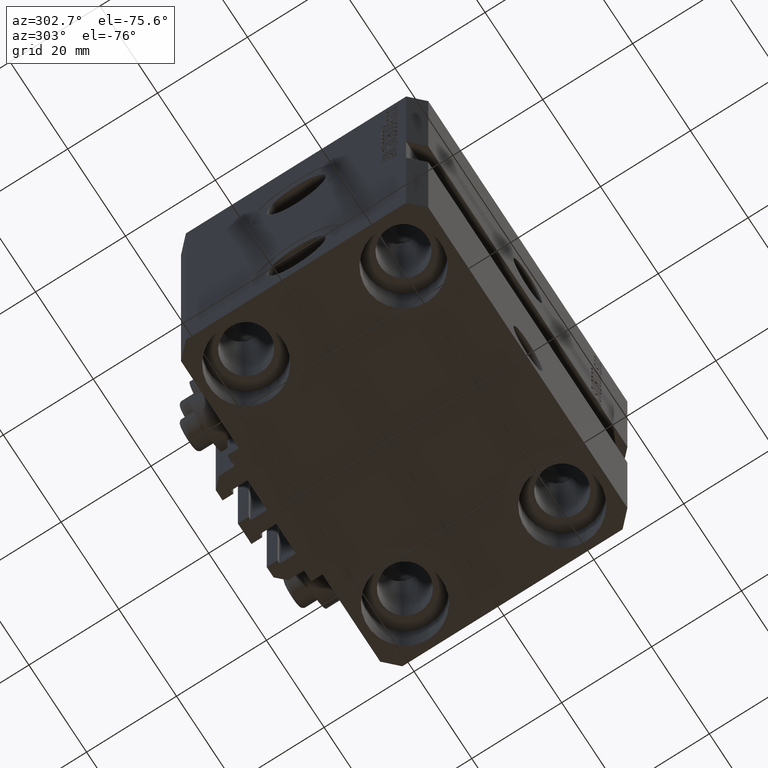
[diagram: clean part render]
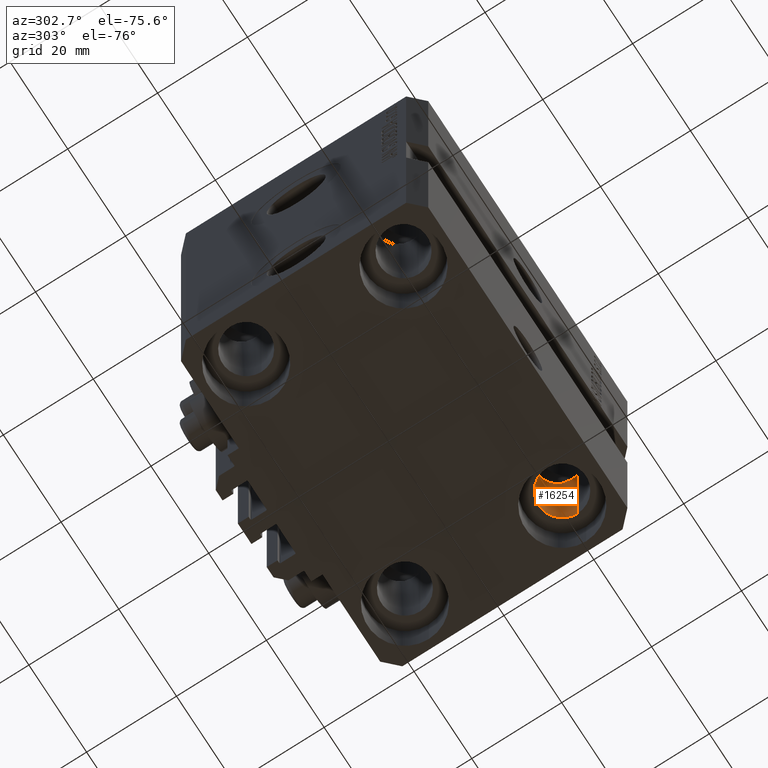
[diagram: same view with one face highlighted and labeled with its STEP entity id]
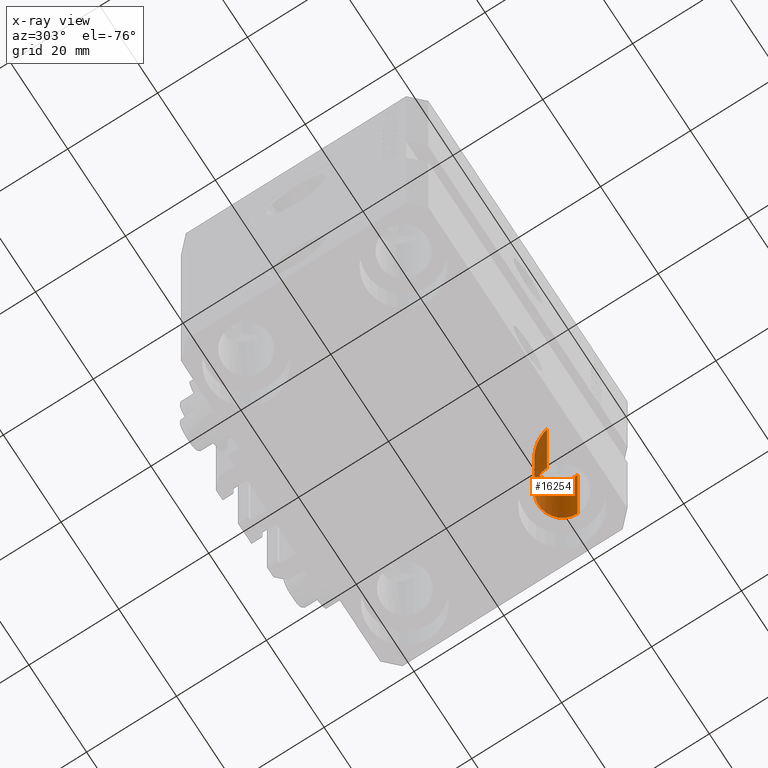
[diagram: x-ray of the same camera — body ghosted, the highlighted face saturated]
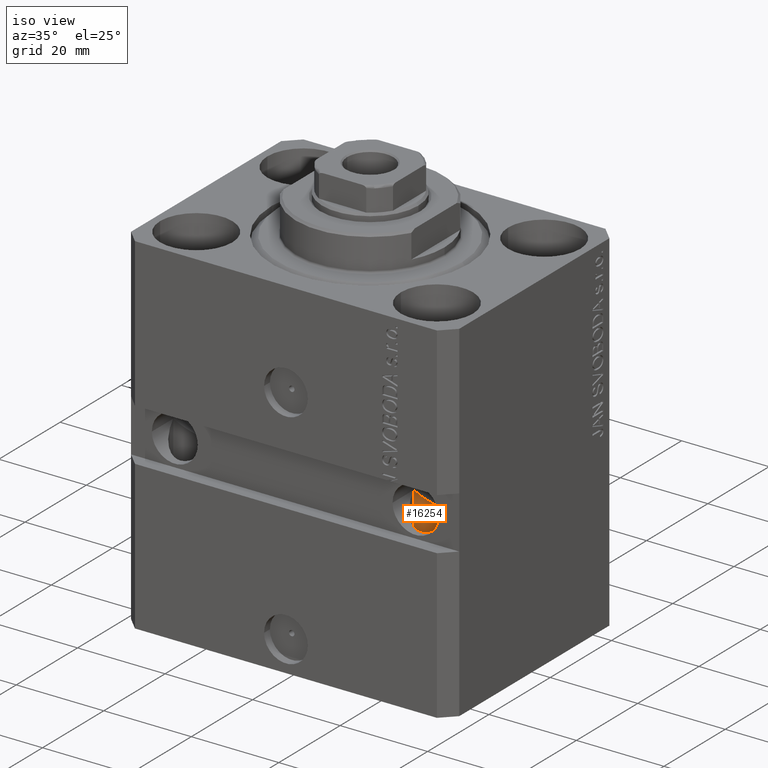
[diagram: same view with one face highlighted and labeled with its STEP entity id]
A machine part, auxiliary view. The second image highlights one B-rep face of the part: STEP entity #16254.
The next image is the same camera in x-ray: the body ghosted, the highlighted face saturated — about 19% of this face is hidden behind the body in this view.
A second angle (iso view) of the same face is appended — the face is thin or edge-on in the first view.
In plain terms, the highlighted cylindrical surface (edge-blend (fillet) strip) has radius 5.25 mm, axis along (0, 0, 1).
Its self-contained STEP definition (entity closure, byte-faithful):
#273 = VECTOR ( 'NONE', #41329, 1000.000000000000000 ) ;
#1597 = CARTESIAN_POINT ( 'NONE',  ( 32.75000000000000000, -17.50000000000000000, -69.00000000000000000 ) ) ;
#2551 = DIRECTION ( 'NONE',  ( 1.000000000000000000, 0.000000000000000000, 0.000000000000000000 ) ) ;
#3795 = ORIENTED_EDGE ( 'NONE', *, *, #31830, .T. ) ;
#5109 = CARTESIAN_POINT ( 'NONE',  ( 22.25000000000000711, -17.50000000000000000, -69.00000000000000000 ) ) ;
#5636 = FACE_OUTER_BOUND ( 'NONE', #10278, .T. ) ;
#6328 = CARTESIAN_POINT ( 'NONE',  ( 27.50000000000000355, -17.50000000000000000, -80.00000000000000000 ) ) ;
#7597 = CARTESIAN_POINT ( 'NONE',  ( 32.74999999999999289, -7.000000000000016875, -50.49999999999999289 ) ) ;
#8133 = CARTESIAN_POINT ( 'NONE',  ( 27.50000000000000355, -17.50000000000000000, -69.00000000000000000 ) ) ;
#8170 = CARTESIAN_POINT ( 'NONE',  ( 22.25000000000000711, -17.50000000000000000, -80.00000000000000000 ) ) ;
#8650 = LINE ( 'NONE', #8170, #273 ) ;
#8786 = CARTESIAN_POINT ( 'NONE',  ( 22.25000000000001066, -17.50000000000000000, -40.00000000000000000 ) ) ;
#10278 = EDGE_LOOP ( 'NONE', ( #24021, #3795, #23814, #33725 ) ) ;
#15709 = DIRECTION ( 'NONE',  ( 0.000000000000000000, 0.000000000000000000, -1.000000000000000000 ) ) ;
#16254 = ADVANCED_FACE ( 'NONE', ( #5636 ), #42309, .F. ) ;
#16400 = EDGE_CURVE ( 'NONE', #26192, #42251, #8650, .T. ) ;
#18079 = EDGE_CURVE ( 'NONE', #41469, #42251, #31193, .T. ) ;
#21810 = CARTESIAN_POINT ( 'NONE',  ( 22.25000000000001066, -7.000000000000016875, -50.49999999999999289 ) ) ;
#23009 = VERTEX_POINT ( 'NONE', #1597 ) ;
#23057 = DIRECTION ( 'NONE',  ( -1.000000000000000000, 0.000000000000000000, 0.000000000000000000 ) ) ;
#23621 = DIRECTION ( 'NONE',  ( -0.000000000000000000, -0.000000000000000000, 1.000000000000000000 ) ) ;
#23814 = ORIENTED_EDGE ( 'NONE', *, *, #44671, .T. ) ;
#24021 = ORIENTED_EDGE ( 'NONE', *, *, #16400, .F. ) ;
#26192 = VERTEX_POINT ( 'NONE', #5109 ) ;
#26987 = AXIS2_PLACEMENT_3D ( 'NONE', #8133, #15709, #23057 ) ;
#29671 = CARTESIAN_POINT ( 'NONE',  ( 32.75000000000000000, -17.50000000000000000, -40.00000000000000000 ) ) ;
#30478 = AXIS2_PLACEMENT_3D ( 'NONE', #6328, #23621, #2551 ) ;
#31193 =( BOUNDED_CURVE ( )  B_SPLINE_CURVE ( 3, ( #42441, #7597, #21810, #40501 ),
 .UNSPECIFIED., .F., .F. ) 
 B_SPLINE_CURVE_WITH_KNOTS ( ( 4, 4 ),
 ( 1.570796326794896558, 4.712388980384689674 ),
 .UNSPECIFIED. ) 
 CURVE ( )  GEOMETRIC_REPRESENTATION_ITEM ( )  RATIONAL_B_SPLINE_CURVE ( ( 1.000000000000000000, 0.3333333333333333703, 0.3333333333333333703, 1.000000000000000000 ) ) 
 REPRESENTATION_ITEM ( '' )  );
#31830 = EDGE_CURVE ( 'NONE', #26192, #23009, #35396, .T. ) ;
#31932 = VECTOR ( 'NONE', #36861, 1000.000000000000000 ) ;
#33725 = ORIENTED_EDGE ( 'NONE', *, *, #18079, .T. ) ;
#35396 = CIRCLE ( 'NONE', #26987, 5.249999999999997335 ) ;
#36861 = DIRECTION ( 'NONE',  ( -0.000000000000000000, -0.000000000000000000, 1.000000000000000000 ) ) ;
#40425 = CARTESIAN_POINT ( 'NONE',  ( 32.75000000000000000, -17.50000000000000000, -80.00000000000000000 ) ) ;
#40501 = CARTESIAN_POINT ( 'NONE',  ( 22.25000000000001066, -17.50000000000000000, -40.00000000000000000 ) ) ;
#41329 = DIRECTION ( 'NONE',  ( -0.000000000000000000, -0.000000000000000000, 1.000000000000000000 ) ) ;
#41469 = VERTEX_POINT ( 'NONE', #29671 ) ;
#42251 = VERTEX_POINT ( 'NONE', #8786 ) ;
#42309 = CYLINDRICAL_SURFACE ( 'NONE', #30478, 5.249999999999997335 ) ;
#42441 = CARTESIAN_POINT ( 'NONE',  ( 32.75000000000000000, -17.50000000000000000, -40.00000000000000000 ) ) ;
#43740 = LINE ( 'NONE', #40425, #31932 ) ;
#44671 = EDGE_CURVE ( 'NONE', #23009, #41469, #43740, .T. ) ;